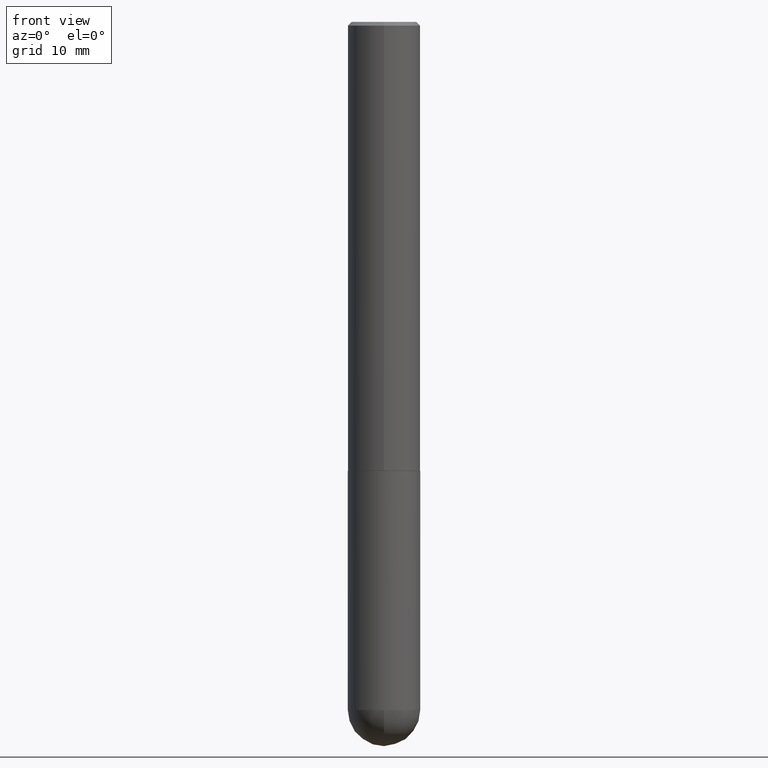
[diagram: clean part render]
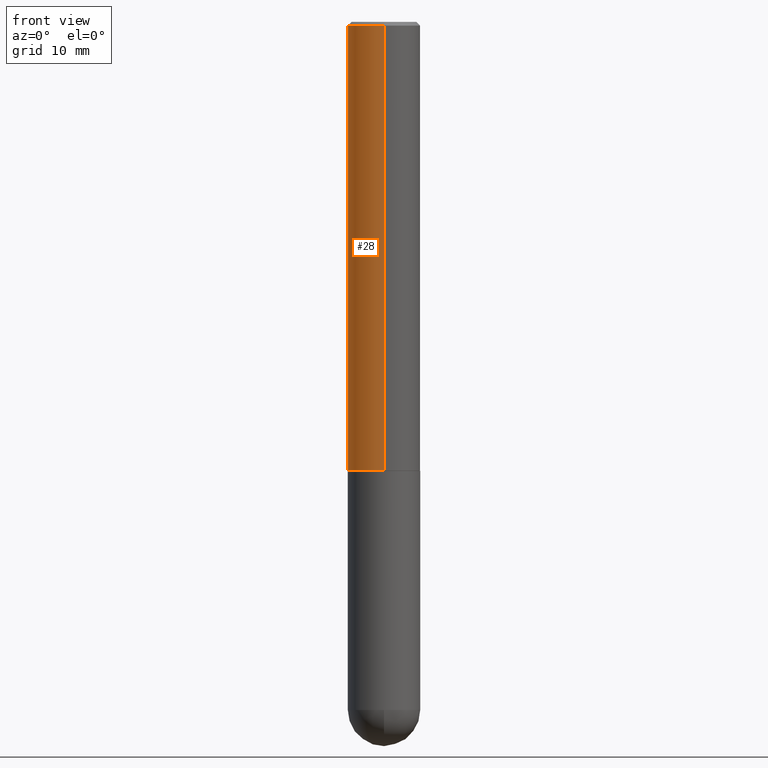
[diagram: same view with one face highlighted and labeled with its STEP entity id]
A machine part, front view. The second image highlights one B-rep face of the part: STEP entity #28.
In plain terms, the highlighted cylindrical surface (edge-blend (fillet) strip) has radius 5 mm, axis along (-0, 0, 1).
Its self-contained STEP definition (entity closure, byte-faithful):
#17 = LINE ( 'NONE', #281, #244 ) ;
#19 = FACE_OUTER_BOUND ( 'NONE', #215, .T. ) ;
#28 = ADVANCED_FACE ( 'NONE', ( #19 ), #50, .T. ) ;
#36 = ORIENTED_EDGE ( 'NONE', *, *, #324, .T. ) ;
#41 = LINE ( 'NONE', #338, #309 ) ;
#48 = CARTESIAN_POINT ( 'NONE',  ( 1.374596203102542200E-15, 0.1968499999999999694, -0.02000000000000072900 ) ) ;
#50 = CYLINDRICAL_SURFACE ( 'NONE', #125, 0.1968500000000001915 ) ;
#53 = VERTEX_POINT ( 'NONE', #48 ) ;
#63 = VERTEX_POINT ( 'NONE', #342 ) ;
#78 = ORIENTED_EDGE ( 'NONE', *, *, #128, .T. ) ;
#111 = AXIS2_PLACEMENT_3D ( 'NONE', #348, #149, #307 ) ;
#125 = AXIS2_PLACEMENT_3D ( 'NONE', #262, #207, #146 ) ;
#128 = EDGE_CURVE ( 'NONE', #388, #326, #322, .T. ) ;
#146 = DIRECTION ( 'NONE',  ( -6.982962677686265133E-15, -1.000000000000000000, 3.492897042394238758E-15 ) ) ;
#149 = DIRECTION ( 'NONE',  ( -2.444480225679141495E-29, 3.492897042394238758E-15, 1.000000000000000000 ) ) ;
#160 = AXIS2_PLACEMENT_3D ( 'NONE', #264, #403, #222 ) ;
#192 = CARTESIAN_POINT ( 'NONE',  ( 1.398703375343789145E-15, 0.1968499999999918093, -2.439900000000000624 ) ) ;
#207 = DIRECTION ( 'NONE',  ( -2.444480225679141495E-29, 3.492897042394238758E-15, 1.000000000000000000 ) ) ;
#211 = DIRECTION ( 'NONE',  ( -2.444480225679141495E-29, 3.492897042394238758E-15, 1.000000000000000000 ) ) ;
#215 = EDGE_LOOP ( 'NONE', ( #321, #78, #36, #245 ) ) ;
#222 = DIRECTION ( 'NONE',  ( -6.982962677686265133E-15, -1.000000000000000000, 3.491137977679279029E-15 ) ) ;
#244 = VECTOR ( 'NONE', #211, 39.37007874015748143 ) ;
#245 = ORIENTED_EDGE ( 'NONE', *, *, #374, .F. ) ;
#262 = CARTESIAN_POINT ( 'NONE',  ( 0.000000000000000000, 0.000000000000000000, 0.000000000000000000 ) ) ;
#264 = CARTESIAN_POINT ( 'NONE',  ( 4.888960451358293429E-31, -6.985794084788491174E-17, -0.02000000000000004205 ) ) ;
#281 = CARTESIAN_POINT ( 'NONE',  ( -1.374596203102542594E-15, -0.1968500000000001915, 6.875767827953065398E-16 ) ) ;
#307 = DIRECTION ( 'NONE',  ( -6.982962677686265133E-15, -1.000000000000000000, 4.163344669033668535E-15 ) ) ;
#309 = VECTOR ( 'NONE', #406, 39.37007874015748143 ) ;
#321 = ORIENTED_EDGE ( 'NONE', *, *, #405, .F. ) ;
#322 = CIRCLE ( 'NONE', #111, 0.1968500000000003303 ) ;
#324 = EDGE_CURVE ( 'NONE', #326, #63, #17, .T. ) ;
#326 = VERTEX_POINT ( 'NONE', #355 ) ;
#338 = CARTESIAN_POINT ( 'NONE',  ( 1.398703375343758182E-15, 0.1968500000000001915, -6.875767827953065398E-16 ) ) ;
#342 = CARTESIAN_POINT ( 'NONE',  ( -1.350489030861325626E-15, -0.1968500000000001082, -0.01999999999999935510 ) ) ;
#348 = CARTESIAN_POINT ( 'NONE',  ( 5.964287302634537555E-29, -8.522319493737701952E-15, -2.439899999999999736 ) ) ;
#355 = CARTESIAN_POINT ( 'NONE',  ( -1.374596203102484021E-15, -0.1968500000000088512, -2.439899999999998847 ) ) ;
#356 = CIRCLE ( 'NONE', #160, 0.1968500000000000527 ) ;
#374 = EDGE_CURVE ( 'NONE', #53, #63, #356, .T. ) ;
#388 = VERTEX_POINT ( 'NONE', #192 ) ;
#403 = DIRECTION ( 'NONE',  ( -2.444480225679141495E-29, 3.492897042394238758E-15, 1.000000000000000000 ) ) ;
#405 = EDGE_CURVE ( 'NONE', #388, #53, #41, .T. ) ;
#406 = DIRECTION ( 'NONE',  ( -2.444480225679141495E-29, 3.492897042394238758E-15, 1.000000000000000000 ) ) ;